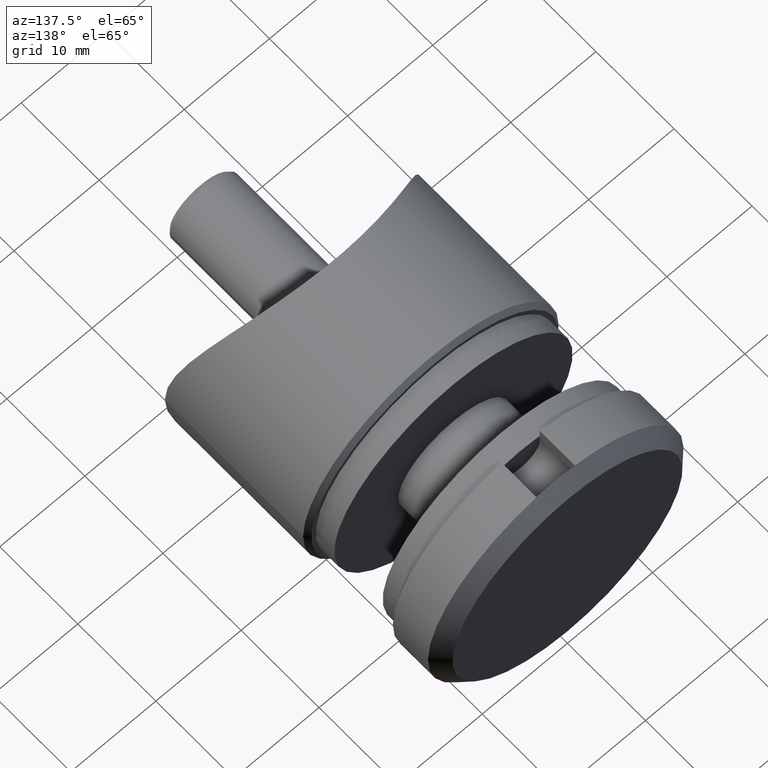
[diagram: clean part render]
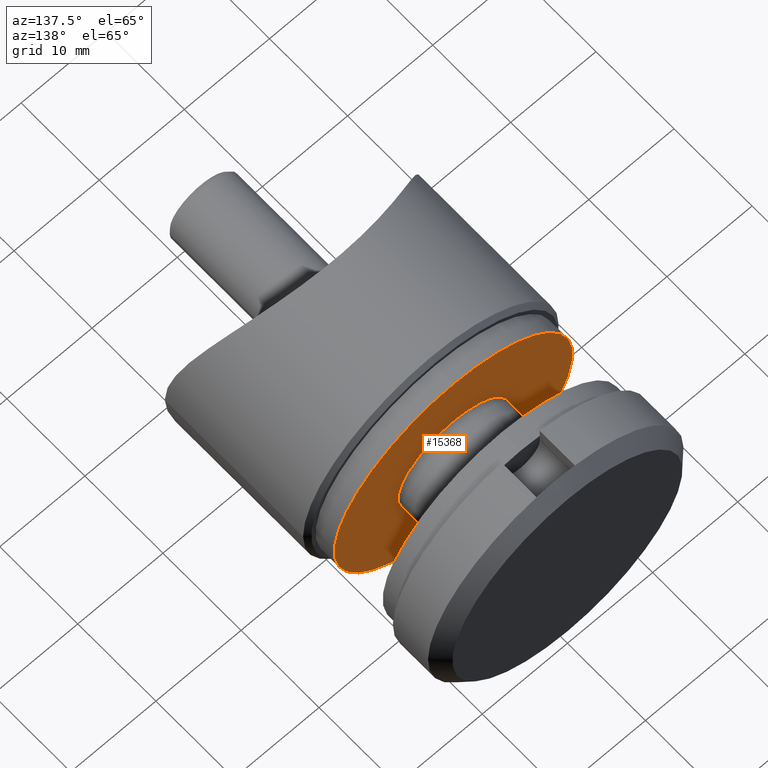
[diagram: same view with one face highlighted and labeled with its STEP entity id]
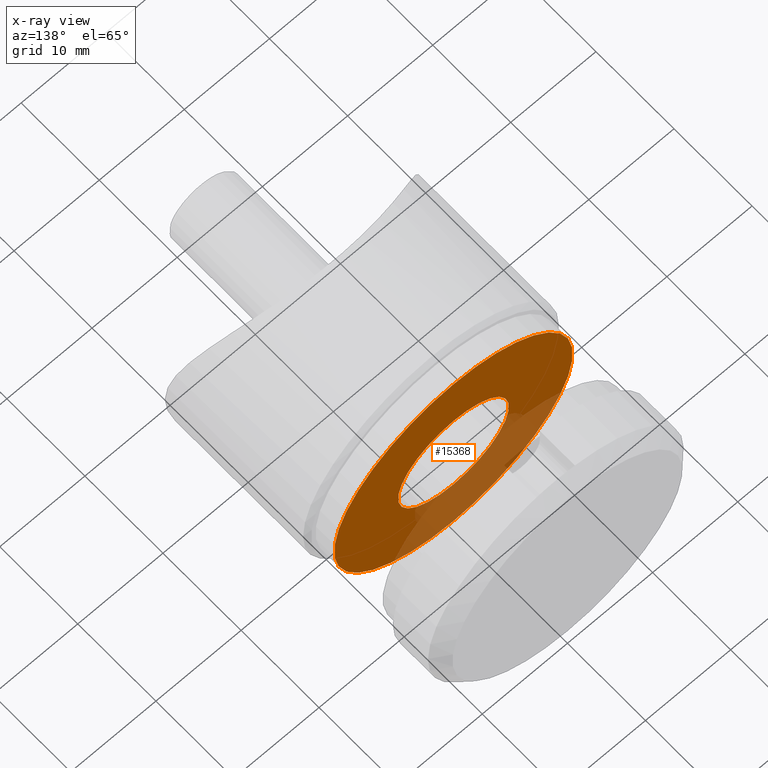
[diagram: x-ray of the same camera — body ghosted, the highlighted face saturated]
A machine part, auxiliary view. The second image highlights one B-rep face of the part: STEP entity #15368.
The next image is the same camera in x-ray: the body ghosted, the highlighted face saturated — about 27% of this face is hidden behind the body in this view.
In plain terms, the highlighted planar face has unit normal (0, 1, 0).
Its self-contained STEP definition (entity closure, byte-faithful):
#153 = EDGE_CURVE ( 'NONE', #2819, #9154, #12445, .T. ) ;
#494 = DIRECTION ( 'NONE',  ( 0.000000000000000000, 0.000000000000000000, -1.000000000000000000 ) ) ;
#1185 = EDGE_LOOP ( 'NONE', ( #5545, #5400 ) ) ;
#1496 = CIRCLE ( 'NONE', #7589, 14.00000000000018829 ) ;
#2047 = FACE_OUTER_BOUND ( 'NONE', #1185, .T. ) ;
#2356 = DIRECTION ( 'NONE',  ( 0.000000000000000000, 0.000000000000000000, 1.000000000000000000 ) ) ;
#2479 = EDGE_LOOP ( 'NONE', ( #15092, #14624 ) ) ;
#2819 = VERTEX_POINT ( 'NONE', #9075 ) ;
#2935 = VERTEX_POINT ( 'NONE', #13228 ) ;
#3036 = CARTESIAN_POINT ( 'NONE',  ( 0.000000000000000000, 2.399999999999999467, -6.500000000000086153 ) ) ;
#3313 = AXIS2_PLACEMENT_3D ( 'NONE', #6102, #7684, #2356 ) ;
#5164 = VERTEX_POINT ( 'NONE', #15091 ) ;
#5255 = EDGE_CURVE ( 'NONE', #9154, #2819, #12662, .T. ) ;
#5400 = ORIENTED_EDGE ( 'NONE', *, *, #11571, .F. ) ;
#5545 = ORIENTED_EDGE ( 'NONE', *, *, #8870, .F. ) ;
#5885 = DIRECTION ( 'NONE',  ( 0.000000000000000000, -1.000000000000000000, 0.000000000000000000 ) ) ;
#6039 = DIRECTION ( 'NONE',  ( 0.000000000000000000, 0.000000000000000000, -1.000000000000000000 ) ) ;
#6102 = CARTESIAN_POINT ( 'NONE',  ( 14.00000000000020606, 2.399999999999999467, 0.000000000000000000 ) ) ;
#6481 = AXIS2_PLACEMENT_3D ( 'NONE', #10054, #12488, #6039 ) ;
#7470 = DIRECTION ( 'NONE',  ( 0.000000000000000000, -1.000000000000000000, 0.000000000000000000 ) ) ;
#7589 = AXIS2_PLACEMENT_3D ( 'NONE', #11163, #5885, #494 ) ;
#7684 = DIRECTION ( 'NONE',  ( 0.000000000000000000, 1.000000000000000000, 0.000000000000000000 ) ) ;
#8722 = CARTESIAN_POINT ( 'NONE',  ( 0.000000000000000000, 2.399999999999999467, 0.000000000000000000 ) ) ;
#8870 = EDGE_CURVE ( 'NONE', #2935, #5164, #1496, .T. ) ;
#9075 = CARTESIAN_POINT ( 'NONE',  ( 7.960204194457795477E-16, 2.399999999999999467, 6.500000000000000000 ) ) ;
#9154 = VERTEX_POINT ( 'NONE', #3036 ) ;
#10054 = CARTESIAN_POINT ( 'NONE',  ( 0.000000000000000000, 2.399999999999999467, 0.000000000000000000 ) ) ;
#11163 = CARTESIAN_POINT ( 'NONE',  ( 0.000000000000000000, 2.399999999999999467, 0.000000000000000000 ) ) ;
#11571 = EDGE_CURVE ( 'NONE', #5164, #2935, #11848, .T. ) ;
#11848 = CIRCLE ( 'NONE', #6481, 14.00000000000018829 ) ;
#12445 = CIRCLE ( 'NONE', #15870, 6.500000000000086153 ) ;
#12488 = DIRECTION ( 'NONE',  ( 0.000000000000000000, -1.000000000000000000, 0.000000000000000000 ) ) ;
#12593 = DIRECTION ( 'NONE',  ( 0.000000000000000000, 0.000000000000000000, -1.000000000000000000 ) ) ;
#12662 = CIRCLE ( 'NONE', #15646, 6.500000000000086153 ) ;
#13004 = PLANE ( 'NONE',  #3313 ) ;
#13042 = FACE_BOUND ( 'NONE', #2479, .T. ) ;
#13228 = CARTESIAN_POINT ( 'NONE',  ( 0.000000000000000000, 2.399999999999999467, -14.00000000000018829 ) ) ;
#14019 = DIRECTION ( 'NONE',  ( 0.000000000000000000, 0.000000000000000000, -1.000000000000000000 ) ) ;
#14075 = CARTESIAN_POINT ( 'NONE',  ( 0.000000000000000000, 2.399999999999999467, 0.000000000000000000 ) ) ;
#14624 = ORIENTED_EDGE ( 'NONE', *, *, #153, .T. ) ;
#15091 = CARTESIAN_POINT ( 'NONE',  ( 1.714505518806294244E-15, 2.399999999999999467, 14.00000000000000000 ) ) ;
#15092 = ORIENTED_EDGE ( 'NONE', *, *, #5255, .T. ) ;
#15368 = ADVANCED_FACE ( 'NONE', ( #13042, #2047 ), #13004, .T. ) ;
#15445 = DIRECTION ( 'NONE',  ( 0.000000000000000000, -1.000000000000000000, 0.000000000000000000 ) ) ;
#15646 = AXIS2_PLACEMENT_3D ( 'NONE', #8722, #15445, #12593 ) ;
#15870 = AXIS2_PLACEMENT_3D ( 'NONE', #14075, #7470, #14019 ) ;